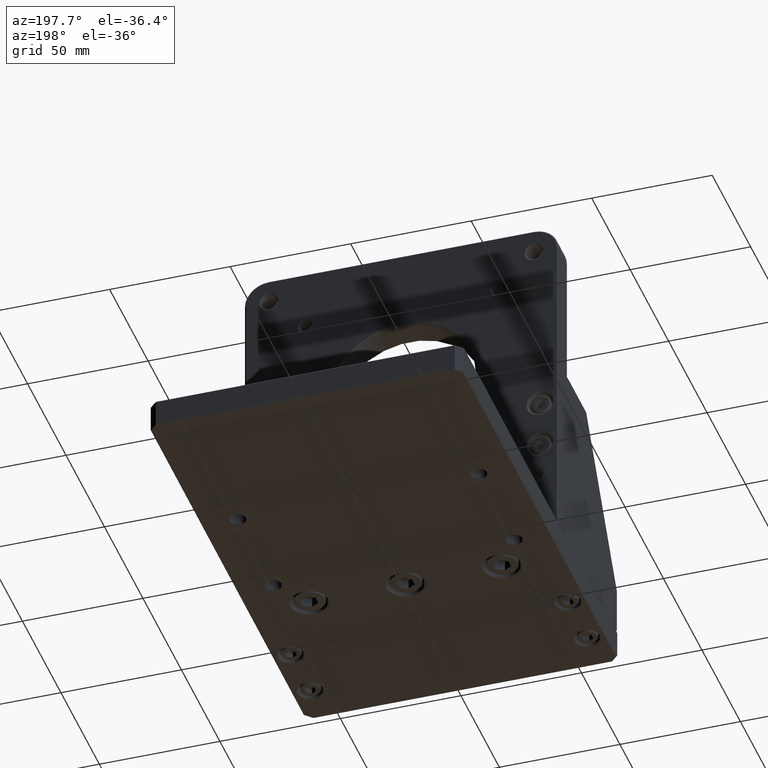
[diagram: clean part render]
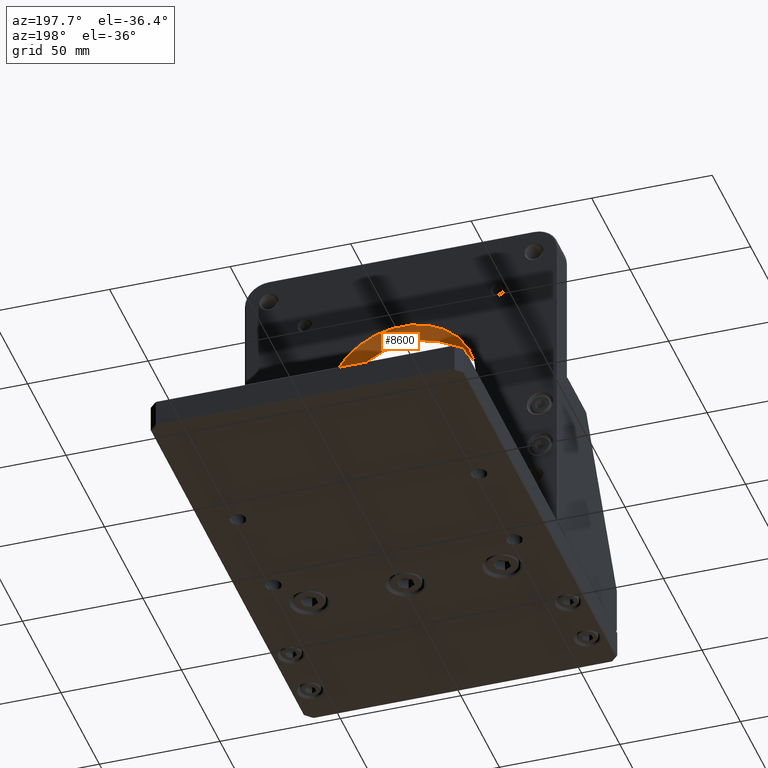
[diagram: same view with one face highlighted and labeled with its STEP entity id]
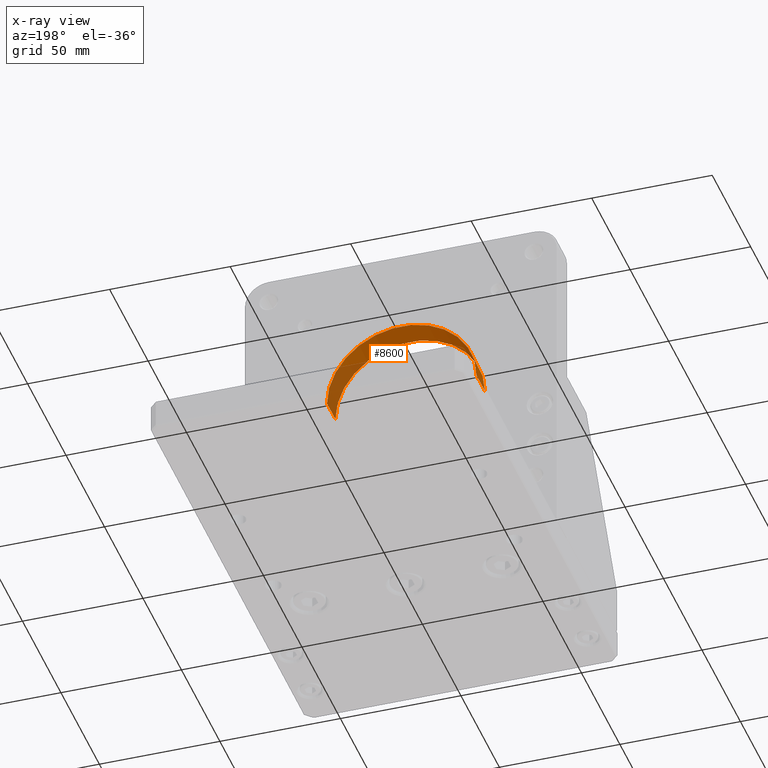
[diagram: x-ray of the same camera — body ghosted, the highlighted face saturated]
A machine part, auxiliary view. The second image highlights one B-rep face of the part: STEP entity #8600.
The next image is the same camera in x-ray: the body ghosted, the highlighted face saturated — about 28% of this face is hidden behind the body in this view.
In plain terms, the highlighted cylindrical surface (partial cylindrical patch) has radius 31 mm, axis along (0, -1, 0).
Its self-contained STEP definition (entity closure, byte-faithful):
#32 = CYLINDRICAL_SURFACE ( 'NONE', #11358, 31.00000000000000000 ) ;
#592 = CIRCLE ( 'NONE', #11210, 31.00000000000000000 ) ;
#1142 = CARTESIAN_POINT ( 'NONE',  ( 30.99999999999887734, -22.49999999999945643, 92.00000000000051159 ) ) ;
#1315 = EDGE_CURVE ( 'NONE', #2651, #8045, #3817, .T. ) ;
#1519 = CARTESIAN_POINT ( 'NONE',  ( 30.99999999999895550, -33.99999999999947420, 92.00000000000055422 ) ) ;
#1561 = CARTESIAN_POINT ( 'NONE',  ( -1.121186864586585913E-12, -22.99999999999966604, 92.00000000000009948 ) ) ;
#2651 = VERTEX_POINT ( 'NONE', #6086 ) ;
#2816 = LINE ( 'NONE', #10846, #9885 ) ;
#3211 = EDGE_CURVE ( 'NONE', #8045, #12055, #592, .T. ) ;
#3228 = CARTESIAN_POINT ( 'NONE',  ( -31.00000000000112266, -22.99999999999988276, 91.99999999999965894 ) ) ;
#3817 = LINE ( 'NONE', #1142, #4429 ) ;
#4021 = DIRECTION ( 'NONE',  ( 1.000000000000000000, 6.938893903907228378E-15, 1.387778780781445676E-14 ) ) ;
#4429 = VECTOR ( 'NONE', #5194, 1000.000000000000000 ) ;
#4787 = AXIS2_PLACEMENT_3D ( 'NONE', #1561, #5606, #11767 ) ;
#4875 = DIRECTION ( 'NONE',  ( 6.982962677686217801E-15, -1.000000000000000000, 3.491481338843133355E-15 ) ) ;
#5179 = ORIENTED_EDGE ( 'NONE', *, *, #6579, .T. ) ;
#5194 = DIRECTION ( 'NONE',  ( 6.982962677686217801E-15, -1.000000000000000000, 3.491481338843133355E-15 ) ) ;
#5606 = DIRECTION ( 'NONE',  ( -6.982962677686217801E-15, 1.000000000000000000, -3.491481338843133355E-15 ) ) ;
#5650 = EDGE_LOOP ( 'NONE', ( #8075, #5179, #7632, #12403 ) ) ;
#5910 = DIRECTION ( 'NONE',  ( 6.982962677686217801E-15, -1.000000000000000000, 3.491481338843133355E-15 ) ) ;
#6086 = CARTESIAN_POINT ( 'NONE',  ( 30.99999999999888090, -22.99999999999945288, 92.00000000000052580 ) ) ;
#6496 = CIRCLE ( 'NONE', #4787, 31.00000000000000000 ) ;
#6579 = EDGE_CURVE ( 'NONE', #10995, #2651, #6496, .T. ) ;
#6603 = EDGE_CURVE ( 'NONE', #10995, #12055, #2816, .T. ) ;
#7632 = ORIENTED_EDGE ( 'NONE', *, *, #1315, .T. ) ;
#8045 = VERTEX_POINT ( 'NONE', #1519 ) ;
#8075 = ORIENTED_EDGE ( 'NONE', *, *, #6603, .F. ) ;
#8390 = CARTESIAN_POINT ( 'NONE',  ( -31.00000000000104450, -33.99999999999990763, 91.99999999999965894 ) ) ;
#8600 = ADVANCED_FACE ( 'NONE', ( #9124 ), #32, .F. ) ;
#8758 = DIRECTION ( 'NONE',  ( 1.000000000000000000, 6.938893903907228378E-15, 1.387778780781445676E-14 ) ) ;
#9124 = FACE_OUTER_BOUND ( 'NONE', #5650, .T. ) ;
#9750 = CARTESIAN_POINT ( 'NONE',  ( -1.044374275132037459E-12, -33.99999999999968736, 92.00000000000012790 ) ) ;
#9781 = DIRECTION ( 'NONE',  ( 6.982962677686217801E-15, -1.000000000000000000, 3.491481338843133355E-15 ) ) ;
#9885 = VECTOR ( 'NONE', #9781, 1000.000000000000000 ) ;
#10055 = CARTESIAN_POINT ( 'NONE',  ( -1.124678345925428933E-12, -22.49999999999967315, 92.00000000000008527 ) ) ;
#10846 = CARTESIAN_POINT ( 'NONE',  ( -31.00000000000112266, -22.49999999999988987, 91.99999999999964473 ) ) ;
#10995 = VERTEX_POINT ( 'NONE', #3228 ) ;
#11210 = AXIS2_PLACEMENT_3D ( 'NONE', #9750, #5910, #8758 ) ;
#11358 = AXIS2_PLACEMENT_3D ( 'NONE', #10055, #4875, #4021 ) ;
#11767 = DIRECTION ( 'NONE',  ( 1.000000000000000000, 6.938893903907228378E-15, 1.387778780781445676E-14 ) ) ;
#12055 = VERTEX_POINT ( 'NONE', #8390 ) ;
#12403 = ORIENTED_EDGE ( 'NONE', *, *, #3211, .T. ) ;